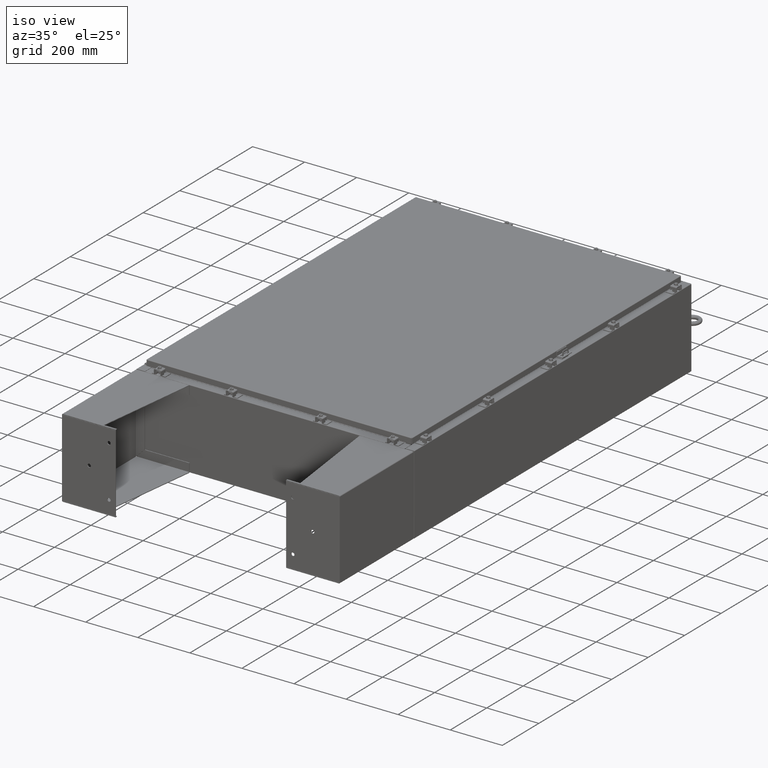
[diagram: clean part render]
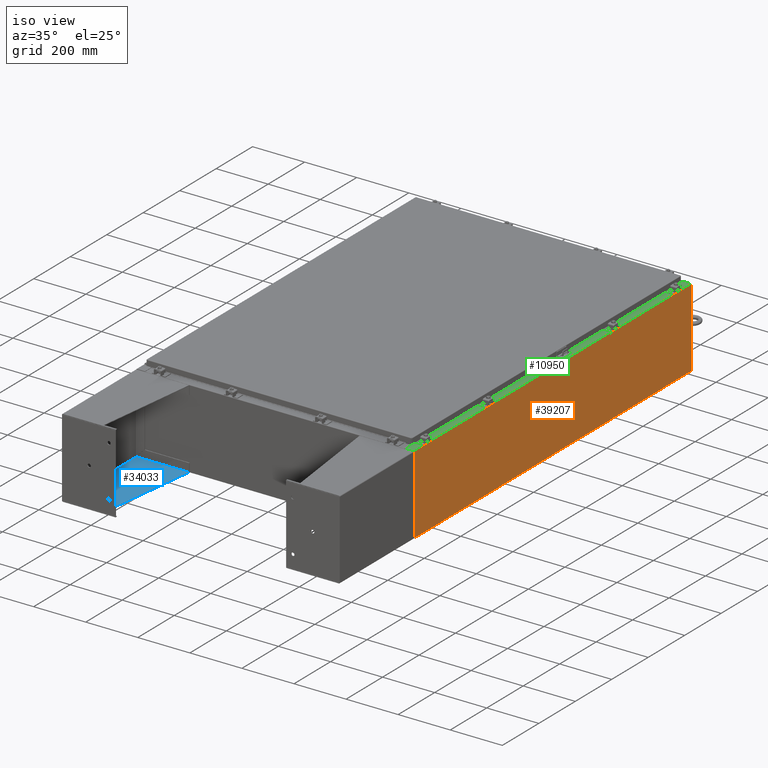
[diagram: same view with three faces highlighted in distinct colors, each labeled with its STEP entity id]
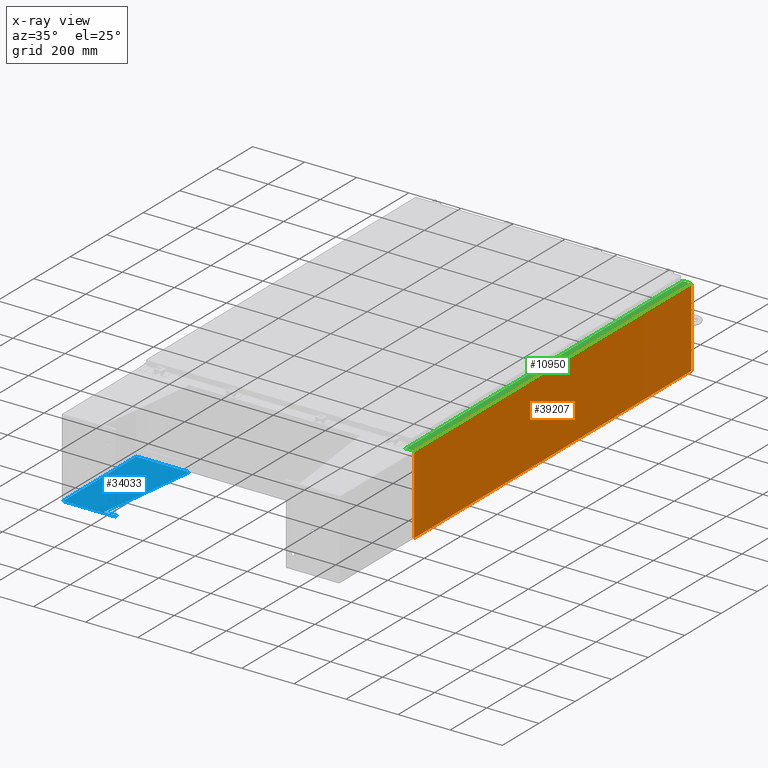
[diagram: x-ray of the same camera — body ghosted, the three highlighted faces saturated]
A machine part, iso view with three faces highlighted in distinct colors.
The next image is the same camera in x-ray (body ghosted, the three faces saturated) — at least one of them is partly hidden behind the body in this view.
Their STEP definitions:

[orange] entity #39207 — the highlighted planar face has unit normal (-1, 0, 0).
#5735 = CARTESIAN_POINT ( 'NONE',  ( 20.99999999999999600, -29.92530000000000400, 0.01299999999999764400 ) ) ;
#6428 = EDGE_CURVE ( 'NONE', #32269, #23948, #49700, .T. ) ;
#6893 = LINE ( 'NONE', #11607, #62644 ) ;
#7962 = FACE_OUTER_BOUND ( 'NONE', #64215, .T. ) ;
#11607 = CARTESIAN_POINT ( 'NONE',  ( 20.99999999999999600, 29.92530000000000000, -7.723170125390783800E-014 ) ) ;
#12146 = CARTESIAN_POINT ( 'NONE',  ( 20.99999999999999600, 0.0000000000000000000, -7.723170125390783800E-014 ) ) ;
#12372 = DIRECTION ( 'NONE',  ( 3.665280361804584200E-015, 0.0000000000000000000, 1.000000000000000000 ) ) ;
#12712 = DIRECTION ( 'NONE',  ( -3.665280361804584200E-015, 0.0000000000000000000, -1.000000000000000000 ) ) ;
#15049 = VERTEX_POINT ( 'NONE', #36578 ) ;
#21090 = DIRECTION ( 'NONE',  ( -0.0000000000000000000, -1.000000000000000000, -0.0000000000000000000 ) ) ;
#23405 = VECTOR ( 'NONE', #12712, 39.37007874015748100 ) ;
#23948 = VERTEX_POINT ( 'NONE', #42127 ) ;
#25228 = VECTOR ( 'NONE', #21090, 39.37007874015748100 ) ;
#25746 = LINE ( 'NONE', #31891, #59261 ) ;
#27225 = CARTESIAN_POINT ( 'NONE',  ( 20.99999999999999600, 29.92530000000000400, 0.01299999999999764400 ) ) ;
#31891 = CARTESIAN_POINT ( 'NONE',  ( 21.00000000000003900, 29.92530000000000400, 11.83760000000000000 ) ) ;
#32269 = VERTEX_POINT ( 'NONE', #46266 ) ;
#32695 = DIRECTION ( 'NONE',  ( 3.665280361804584200E-015, 0.0000000000000000000, 1.000000000000000000 ) ) ;
#33060 = VERTEX_POINT ( 'NONE', #27225 ) ;
#36578 = CARTESIAN_POINT ( 'NONE',  ( 21.00000000000003900, 29.92530000000000400, 11.83760000000000000 ) ) ;
#38500 = PLANE ( 'NONE',  #50181 ) ;
#39207 = ADVANCED_FACE ( 'NONE', ( #7962 ), #38500, .F. ) ;
#40946 = EDGE_CURVE ( 'NONE', #33060, #15049, #6893, .T. ) ;
#42127 = CARTESIAN_POINT ( 'NONE',  ( 20.99999999999999600, -29.92530000000000400, 0.01299999999999764900 ) ) ;
#42809 = EDGE_CURVE ( 'NONE', #15049, #32269, #25746, .T. ) ;
#43768 = DIRECTION ( 'NONE',  ( -1.000000000000000000, 0.0000000000000000000, 3.665280361804584200E-015 ) ) ;
#44557 = ORIENTED_EDGE ( 'NONE', *, *, #63516, .F. ) ;
#46266 = CARTESIAN_POINT ( 'NONE',  ( 21.00000000000003900, -29.92530000000000400, 11.83760000000000000 ) ) ;
#49700 = LINE ( 'NONE', #66361, #23405 ) ;
#50181 = AXIS2_PLACEMENT_3D ( 'NONE', #12146, #43768, #12372 ) ;
#51463 = LINE ( 'NONE', #5735, #25228 ) ;
#52781 = DIRECTION ( 'NONE',  ( -0.0000000000000000000, -1.000000000000000000, -0.0000000000000000000 ) ) ;
#53187 = ORIENTED_EDGE ( 'NONE', *, *, #40946, .T. ) ;
#56747 = ORIENTED_EDGE ( 'NONE', *, *, #42809, .T. ) ;
#59261 = VECTOR ( 'NONE', #52781, 39.37007874015748100 ) ;
#60911 = ORIENTED_EDGE ( 'NONE', *, *, #6428, .T. ) ;
#62644 = VECTOR ( 'NONE', #32695, 39.37007874015748100 ) ;
#63516 = EDGE_CURVE ( 'NONE', #33060, #23948, #51463, .T. ) ;
#64215 = EDGE_LOOP ( 'NONE', ( #56747, #60911, #44557, #53187 ) ) ;
#66361 = CARTESIAN_POINT ( 'NONE',  ( 20.99999999999999600, -29.92530000000000400, -7.723170125390783800E-014 ) ) ;

[blue] entity #34033 — the highlighted planar face has unit normal (-0, -0, 1).
#994 = CARTESIAN_POINT ( 'NONE',  ( 5.895999999999999900, -7.999999999999999100, 0.03900000000001561900 ) ) ;
#2357 = VERTEX_POINT ( 'NONE', #52352 ) ;
#3132 = CARTESIAN_POINT ( 'NONE',  ( 5.896000000000028300, -7.749999999999999100, 8.001000000000031400 ) ) ;
#3520 = CARTESIAN_POINT ( 'NONE',  ( 5.896000000000014100, 7.857000000000001100, 0.03900000000001561900 ) ) ;
#3646 = LINE ( 'NONE', #3520, #56113 ) ;
#6098 = EDGE_CURVE ( 'NONE', #55172, #47268, #27605, .T. ) ;
#6143 = VECTOR ( 'NONE', #27337, 39.37007874015748100 ) ;
#6451 = EDGE_CURVE ( 'NONE', #45279, #55172, #61877, .T. ) ;
#8099 = ORIENTED_EDGE ( 'NONE', *, *, #29397, .T. ) ;
#8464 = CARTESIAN_POINT ( 'NONE',  ( 5.896000000000029200, -7.999999999999999100, 8.001000000000015400 ) ) ;
#8637 = FACE_OUTER_BOUND ( 'NONE', #36668, .T. ) ;
#8751 = DIRECTION ( 'NONE',  ( 0.0000000000000000000, 0.0000000000000000000, 1.000000000000000000 ) ) ;
#9365 = DIRECTION ( 'NONE',  ( -1.000000000000000000, 0.0000000000000000000, 3.550958521948298200E-015 ) ) ;
#10855 = LINE ( 'NONE', #994, #64950 ) ;
#14367 = PLANE ( 'NONE',  #52050 ) ;
#22713 = DIRECTION ( 'NONE',  ( -3.550958521948298200E-015, -0.0000000000000000000, -1.000000000000000000 ) ) ;
#24736 = ORIENTED_EDGE ( 'NONE', *, *, #41802, .F. ) ;
#26500 = VERTEX_POINT ( 'NONE', #40515 ) ;
#27337 = DIRECTION ( 'NONE',  ( -0.0000000000000000000, -1.000000000000000000, -0.0000000000000000000 ) ) ;
#27605 = LINE ( 'NONE', #49965, #66016 ) ;
#27866 = ORIENTED_EDGE ( 'NONE', *, *, #6451, .F. ) ;
#29397 = EDGE_CURVE ( 'NONE', #45279, #50264, #63547, .T. ) ;
#29568 = VECTOR ( 'NONE', #37056, 39.37007874015748100 ) ;
#30237 = CARTESIAN_POINT ( 'NONE',  ( 5.896000000000029200, -7.999999999999999100, 8.001000000000015400 ) ) ;
#32886 = CARTESIAN_POINT ( 'NONE',  ( 5.895999999999999900, -7.999999999999999100, 0.03900000000001561900 ) ) ;
#34033 = ADVANCED_FACE ( 'NONE', ( #8637 ), #14367, .T. ) ;
#36420 = ORIENTED_EDGE ( 'NONE', *, *, #62787, .T. ) ;
#36668 = EDGE_LOOP ( 'NONE', ( #27866, #8099, #36420, #24736, #67113, #53545 ) ) ;
#37056 = DIRECTION ( 'NONE',  ( 4.399772607369798900E-016, 0.9922942345449394800, 0.1239038017531047700 ) ) ;
#40515 = CARTESIAN_POINT ( 'NONE',  ( 5.895999999999999900, 7.857000000000002000, 0.03900000000001561900 ) ) ;
#41802 = EDGE_CURVE ( 'NONE', #26500, #2357, #3646, .T. ) ;
#43472 = LINE ( 'NONE', #57879, #29568 ) ;
#45279 = VERTEX_POINT ( 'NONE', #3132 ) ;
#45510 = CARTESIAN_POINT ( 'NONE',  ( 5.896000000000020300, -7.749999999999999100, 6.052216497445950700 ) ) ;
#46022 = DIRECTION ( 'NONE',  ( 3.550958521948298200E-015, 0.0000000000000000000, 1.000000000000000000 ) ) ;
#47268 = VERTEX_POINT ( 'NONE', #32886 ) ;
#49732 = VECTOR ( 'NONE', #52842, 39.37007874015748100 ) ;
#49965 = CARTESIAN_POINT ( 'NONE',  ( 5.895999999999999900, -7.999999999999999100, 1.529834876451987200E-014 ) ) ;
#50264 = VERTEX_POINT ( 'NONE', #45510 ) ;
#51388 = CARTESIAN_POINT ( 'NONE',  ( 5.896000000000029200, -7.999999999999999100, 8.001000000000015400 ) ) ;
#52050 = AXIS2_PLACEMENT_3D ( 'NONE', #30237, #9365, #46022 ) ;
#52352 = CARTESIAN_POINT ( 'NONE',  ( 5.896000000000029200, 7.857000000000002000, 8.001000000000015400 ) ) ;
#52842 = DIRECTION ( 'NONE',  ( -3.550958521948298200E-015, 0.0000000000000000000, -1.000000000000000000 ) ) ;
#53545 = ORIENTED_EDGE ( 'NONE', *, *, #6098, .F. ) ;
#55172 = VERTEX_POINT ( 'NONE', #51388 ) ;
#56113 = VECTOR ( 'NONE', #8751, 39.37007874015748100 ) ;
#57879 = CARTESIAN_POINT ( 'NONE',  ( 5.896000000000023000, -7.749999999999999100, 6.052216497445950700 ) ) ;
#58470 = DIRECTION ( 'NONE',  ( 0.0000000000000000000, 1.000000000000000000, 0.0000000000000000000 ) ) ;
#61877 = LINE ( 'NONE', #8464, #6143 ) ;
#62787 = EDGE_CURVE ( 'NONE', #50264, #2357, #43472, .T. ) ;
#63075 = CARTESIAN_POINT ( 'NONE',  ( 5.896000000000028300, -7.749999999999999100, 8.001000000000031400 ) ) ;
#63547 = LINE ( 'NONE', #63075, #49732 ) ;
#64950 = VECTOR ( 'NONE', #58470, 39.37007874015748100 ) ;
#66016 = VECTOR ( 'NONE', #22713, 39.37007874015748100 ) ;
#66561 = EDGE_CURVE ( 'NONE', #47268, #26500, #10855, .T. ) ;
#67113 = ORIENTED_EDGE ( 'NONE', *, *, #66561, .F. ) ;

[green] entity #10950 — the highlighted planar face has unit normal (-0, 0, -1).
#931 = VECTOR ( 'NONE', #56731, 39.37007874015748100 ) ;
#3477 = DIRECTION ( 'NONE',  ( 1.000000000000000000, 0.0000000000000000000, 0.0000000000000000000 ) ) ;
#4589 = DIRECTION ( 'NONE',  ( -0.0000000000000000000, -1.000000000000000000, -0.0000000000000000000 ) ) ;
#4751 = CARTESIAN_POINT ( 'NONE',  ( 19.69970000000004300, 28.63110000000000000, 11.92530000000000900 ) ) ;
#5167 = CARTESIAN_POINT ( 'NONE',  ( 19.75005000000004400, 28.61242500000000500, 11.92530000000000900 ) ) ;
#5404 = CARTESIAN_POINT ( 'NONE',  ( 19.69970000000004300, 0.0000000000000000000, 11.92530000000000900 ) ) ;
#5961 = EDGE_CURVE ( 'NONE', #10421, #52158, #63586, .T. ) ;
#8457 = CARTESIAN_POINT ( 'NONE',  ( 8.532114493236894600E-014, 0.0000000000000000000, 11.92530000000014900 ) ) ;
#9032 = ORIENTED_EDGE ( 'NONE', *, *, #27051, .T. ) ;
#9704 = ORIENTED_EDGE ( 'NONE', *, *, #56405, .F. ) ;
#9779 = CIRCLE ( 'NONE', #55949, 0.01867499999999949400 ) ;
#10414 = CARTESIAN_POINT ( 'NONE',  ( 19.69970000000004300, 29.92530000000000400, 11.92530000000000900 ) ) ;
#10421 = VERTEX_POINT ( 'NONE', #30965 ) ;
#10648 = CARTESIAN_POINT ( 'NONE',  ( 19.75005000000004400, 28.59375000000000400, 11.92530000000000900 ) ) ;
#10918 = CARTESIAN_POINT ( 'NONE',  ( 19.71270000000004400, -28.59375000000000000, 11.92530000000000900 ) ) ;
#10950 = ADVANCED_FACE ( 'NONE', ( #39530 ), #35216, .F. ) ;
#11378 = EDGE_CURVE ( 'NONE', #15383, #24652, #30457, .T. ) ;
#11391 = CIRCLE ( 'NONE', #30031, 0.01867499999999949400 ) ;
#12036 = LINE ( 'NONE', #54660, #24344 ) ;
#13028 = LINE ( 'NONE', #13528, #51622 ) ;
#13528 = CARTESIAN_POINT ( 'NONE',  ( 8.532114493236894600E-014, -29.92530000000000400, 11.92530000000014900 ) ) ;
#13947 = ORIENTED_EDGE ( 'NONE', *, *, #5961, .T. ) ;
#14511 = VECTOR ( 'NONE', #4589, 39.37007874015748100 ) ;
#14693 = EDGE_CURVE ( 'NONE', #29238, #50661, #56348, .T. ) ;
#15010 = EDGE_CURVE ( 'NONE', #65183, #30916, #12036, .T. ) ;
#15383 = VERTEX_POINT ( 'NONE', #65675 ) ;
#16169 = EDGE_CURVE ( 'NONE', #62400, #57346, #57802, .T. ) ;
#16515 = DIRECTION ( 'NONE',  ( 1.000000000000000000, 0.0000000000000000000, 0.0000000000000000000 ) ) ;
#17114 = DIRECTION ( 'NONE',  ( 0.0000000000000000000, -1.000000000000000000, 0.0000000000000000000 ) ) ;
#17650 = VECTOR ( 'NONE', #48942, 39.37007874015748100 ) ;
#18265 = ORIENTED_EDGE ( 'NONE', *, *, #14693, .F. ) ;
#19163 = VECTOR ( 'NONE', #59022, 39.37007874015748100 ) ;
#20129 = VECTOR ( 'NONE', #17114, 39.37007874015748100 ) ;
#20600 = ORIENTED_EDGE ( 'NONE', *, *, #56368, .T. ) ;
#20970 = CARTESIAN_POINT ( 'NONE',  ( 19.69970000000004300, 0.0000000000000000000, 11.92530000000000900 ) ) ;
#22812 = VECTOR ( 'NONE', #36536, 39.37007874015748100 ) ;
#23847 = ORIENTED_EDGE ( 'NONE', *, *, #15010, .F. ) ;
#24344 = VECTOR ( 'NONE', #16515, 39.37007874015748100 ) ;
#24652 = VERTEX_POINT ( 'NONE', #4751 ) ;
#25182 = CARTESIAN_POINT ( 'NONE',  ( 19.69970000000004300, -29.92530000000000400, 11.92530000000000900 ) ) ;
#26061 = VERTEX_POINT ( 'NONE', #10414 ) ;
#26428 = EDGE_CURVE ( 'NONE', #30916, #15383, #9779, .T. ) ;
#27051 = EDGE_CURVE ( 'NONE', #29238, #26061, #54024, .T. ) ;
#27080 = VERTEX_POINT ( 'NONE', #52389 ) ;
#28125 = CARTESIAN_POINT ( 'NONE',  ( 19.69970000000004300, -28.63110000000000000, 11.92530000000000900 ) ) ;
#29238 = VERTEX_POINT ( 'NONE', #67220 ) ;
#29294 = DIRECTION ( 'NONE',  ( 7.132762385546384700E-015, 0.0000000000000000000, 1.000000000000000000 ) ) ;
#30031 = AXIS2_PLACEMENT_3D ( 'NONE', #66206, #34886, #3477 ) ;
#30457 = LINE ( 'NONE', #54365, #931 ) ;
#30916 = VERTEX_POINT ( 'NONE', #10648 ) ;
#30965 = CARTESIAN_POINT ( 'NONE',  ( 19.69970000000004300, -28.63110000000000000, 11.92530000000000900 ) ) ;
#31299 = CARTESIAN_POINT ( 'NONE',  ( 8.532114493236894600E-014, 29.92530000000000400, 11.92530000000014900 ) ) ;
#31365 = DIRECTION ( 'NONE',  ( -1.000000000000000000, 0.0000000000000000000, 0.0000000000000000000 ) ) ;
#33149 = LINE ( 'NONE', #37960, #19163 ) ;
#33367 = ORIENTED_EDGE ( 'NONE', *, *, #55918, .T. ) ;
#34886 = DIRECTION ( 'NONE',  ( 7.132762385546384700E-015, 0.0000000000000000000, 1.000000000000000000 ) ) ;
#34956 = LINE ( 'NONE', #28125, #17650 ) ;
#35216 = PLANE ( 'NONE',  #65378 ) ;
#35361 = ORIENTED_EDGE ( 'NONE', *, *, #40028, .F. ) ;
#36536 = DIRECTION ( 'NONE',  ( -1.000000000000000000, 0.0000000000000000000, 7.132762385546384700E-015 ) ) ;
#37267 = CARTESIAN_POINT ( 'NONE',  ( 19.75005000000004400, -28.59375000000000000, 11.92530000000000900 ) ) ;
#37960 = CARTESIAN_POINT ( 'NONE',  ( 19.71270000000004400, -28.59375000000000400, 11.92530000000000900 ) ) ;
#38707 = VECTOR ( 'NONE', #52664, 39.37007874015748100 ) ;
#39530 = FACE_OUTER_BOUND ( 'NONE', #57933, .T. ) ;
#40028 = EDGE_CURVE ( 'NONE', #10421, #27080, #34956, .T. ) ;
#40989 = EDGE_CURVE ( 'NONE', #57346, #65183, #33149, .T. ) ;
#43872 = VECTOR ( 'NONE', #31365, 39.37007874015748100 ) ;
#46121 = CARTESIAN_POINT ( 'NONE',  ( 19.71270000000004400, 28.59375000000000400, 11.92530000000000900 ) ) ;
#48583 = CARTESIAN_POINT ( 'NONE',  ( 19.75005000000004400, -28.59375000000000000, 11.92530000000000900 ) ) ;
#48942 = DIRECTION ( 'NONE',  ( 1.000000000000000000, 0.0000000000000000000, 0.0000000000000000000 ) ) ;
#50661 = VERTEX_POINT ( 'NONE', #54216 ) ;
#51622 = VECTOR ( 'NONE', #55480, 39.37007874015748100 ) ;
#52158 = VERTEX_POINT ( 'NONE', #25182 ) ;
#52389 = CARTESIAN_POINT ( 'NONE',  ( 19.75005000000004400, -28.63110000000000000, 11.92530000000000900 ) ) ;
#52664 = DIRECTION ( 'NONE',  ( 0.0000000000000000000, -1.000000000000000000, 0.0000000000000000000 ) ) ;
#52768 = ORIENTED_EDGE ( 'NONE', *, *, #16169, .F. ) ;
#54024 = LINE ( 'NONE', #31299, #22812 ) ;
#54185 = ORIENTED_EDGE ( 'NONE', *, *, #26428, .F. ) ;
#54216 = CARTESIAN_POINT ( 'NONE',  ( 20.91230000000003700, -29.92530000000000400, 11.92530000000000000 ) ) ;
#54365 = CARTESIAN_POINT ( 'NONE',  ( 19.75005000000004400, 28.63110000000000400, 11.92530000000000900 ) ) ;
#54660 = CARTESIAN_POINT ( 'NONE',  ( 19.71270000000004400, 28.59375000000000400, 11.92530000000000900 ) ) ;
#55480 = DIRECTION ( 'NONE',  ( 1.000000000000000000, 0.0000000000000000000, -7.132762385546384700E-015 ) ) ;
#55917 = LINE ( 'NONE', #20970, #38707 ) ;
#55918 = EDGE_CURVE ( 'NONE', #26061, #24652, #55917, .T. ) ;
#55949 = AXIS2_PLACEMENT_3D ( 'NONE', #5167, #29294, #60294 ) ;
#56348 = LINE ( 'NONE', #64337, #14511 ) ;
#56368 = EDGE_CURVE ( 'NONE', #52158, #50661, #13028, .T. ) ;
#56405 = EDGE_CURVE ( 'NONE', #27080, #62400, #11391, .T. ) ;
#56583 = DIRECTION ( 'NONE',  ( -1.000000000000000000, 0.0000000000000000000, 7.132762385546384700E-015 ) ) ;
#56731 = DIRECTION ( 'NONE',  ( -1.000000000000000000, 8.681145560799821800E-014, 0.0000000000000000000 ) ) ;
#57346 = VERTEX_POINT ( 'NONE', #10918 ) ;
#57802 = LINE ( 'NONE', #37267, #43872 ) ;
#57892 = ORIENTED_EDGE ( 'NONE', *, *, #11378, .F. ) ;
#57933 = EDGE_LOOP ( 'NONE', ( #35361, #13947, #20600, #18265, #9032, #33367, #57892, #54185, #23847, #63638, #52768, #9704 ) ) ;
#59022 = DIRECTION ( 'NONE',  ( -0.0000000000000000000, 1.000000000000000000, -0.0000000000000000000 ) ) ;
#59493 = DIRECTION ( 'NONE',  ( -7.132762385546384700E-015, 0.0000000000000000000, -1.000000000000000000 ) ) ;
#60294 = DIRECTION ( 'NONE',  ( 1.000000000000000000, 0.0000000000000000000, 0.0000000000000000000 ) ) ;
#62400 = VERTEX_POINT ( 'NONE', #48583 ) ;
#63586 = LINE ( 'NONE', #5404, #20129 ) ;
#63638 = ORIENTED_EDGE ( 'NONE', *, *, #40989, .F. ) ;
#64337 = CARTESIAN_POINT ( 'NONE',  ( 20.91230000000003700, -29.92530000000000400, 11.92530000000000000 ) ) ;
#65183 = VERTEX_POINT ( 'NONE', #46121 ) ;
#65378 = AXIS2_PLACEMENT_3D ( 'NONE', #8457, #59493, #56583 ) ;
#65675 = CARTESIAN_POINT ( 'NONE',  ( 19.75005000000004400, 28.63110000000000400, 11.92530000000000900 ) ) ;
#66206 = CARTESIAN_POINT ( 'NONE',  ( 19.75005000000004400, -28.61242499999999800, 11.92530000000000900 ) ) ;
#67220 = CARTESIAN_POINT ( 'NONE',  ( 20.91230000000003700, 29.92530000000000400, 11.92530000000000000 ) ) ;